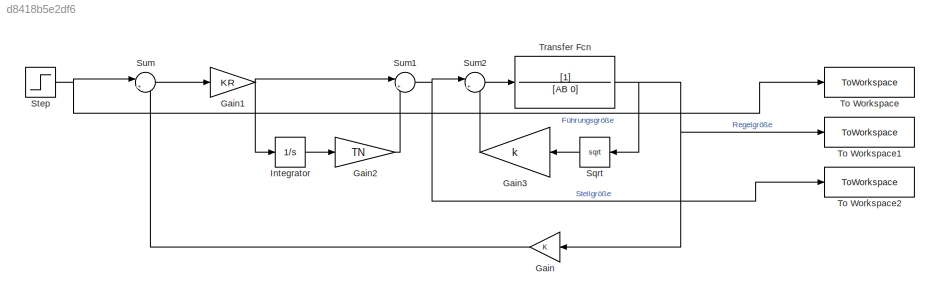
MODEL slx_d8418b5e2df6
KIND model
CONFIG AbsTol = auto
CONFIG EnableMultiTasking = off
CONFIG FixedStep = auto
CONFIG MaxStep = 0.001
CONFIG MinStep = auto
CONFIG RelTol = 1e-3
CONFIG SampleTimeConstraint = Unconstrained
CONFIG SolverName = VariableStepAuto
CONFIG StartTime = 0.0
CONFIG StopTime = 40
BLOCK [Gain] Gain
  NameLocation = top
BLOCK [Gain] Gain1
  Gain = KR
BLOCK [Gain] Gain2
  Gain = TN
BLOCK [Gain] Gain3
  Gain = k
  NameLocation = top
BLOCK [Integrator] Integrator
BLOCK [Sqrt] Sqrt
  NameLocation = top
BLOCK [Step] Step
  After = 0
  Before = 0.1
  SampleTime = 0
  Time = 100
BLOCK [Sum] Sum
  Inputs = |+-
BLOCK [Sum] Sum1
  Inputs = |++
BLOCK [Sum] Sum2
  Inputs = |+-
BLOCK [ToWorkspace] To Workspace
  FixptAsFi = on
  MaxDataPoints = inf
  SampleTime = -1
  SaveFormat = Structure With Time
  VariableName = PIc1
BLOCK [ToWorkspace] To Workspace1
  FixptAsFi = on
  MaxDataPoints = inf
  SampleTime = -1
  SaveFormat = Structure With Time
  VariableName = PIc2
BLOCK [ToWorkspace] To Workspace2
  FixptAsFi = on
  MaxDataPoints = inf
  SampleTime = -1
  SaveFormat = Structure With Time
  VariableName = PIc3
BLOCK [TransferFcn] Transfer Fcn
  Denominator = [AB 0]
NET Gain1:1 -> Integrator:1, Sum1:1
LINE Gain2:1 -> Sum1:2
LINE Gain3:1 -> Sum2:2
LINE Gain:1 -> Sum:2
LINE Integrator:1 -> Gain2:1
LINE Sqrt:1 -> Gain3:1
NET Step:1 -> Sum:1, To Workspace:1
NET Sum1:1 -> Sum2:1, To Workspace2:1
LINE Sum2:1 -> Transfer Fcn:1
LINE Sum:1 -> Gain1:1
NET Transfer Fcn:1 -> Gain:1, Sqrt:1, To Workspace1:1
note: NET lines group one-source signal fan-out (src -> all destinations, sorted); 1:1 wires keep LINE
